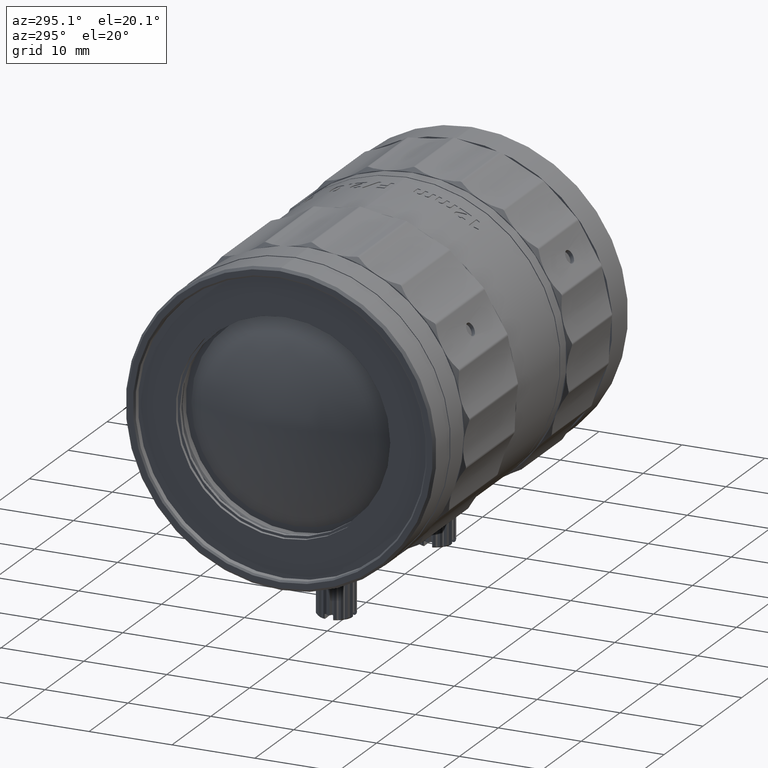
[diagram: clean part render]
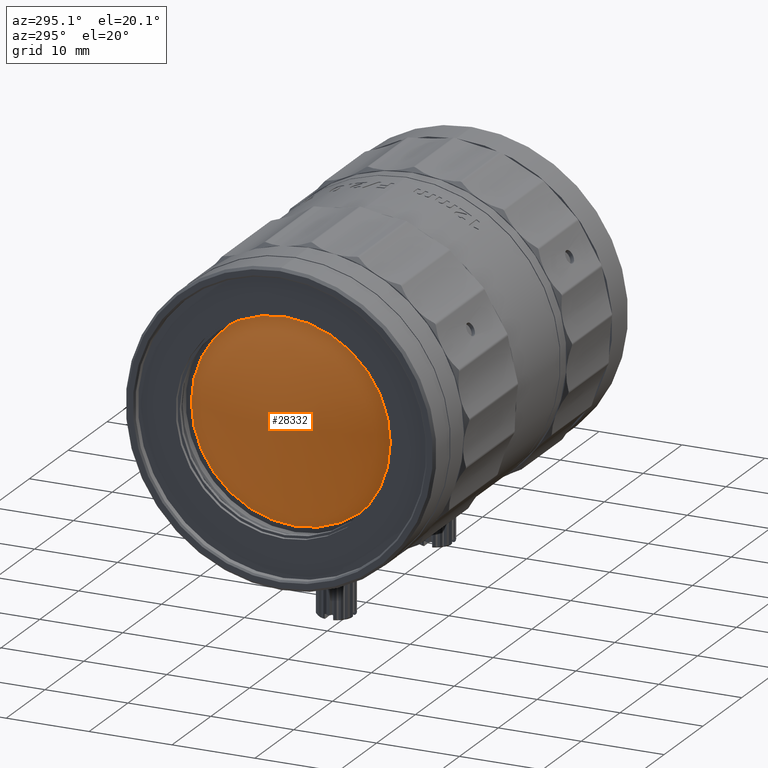
[diagram: same view with one face highlighted and labeled with its STEP entity id]
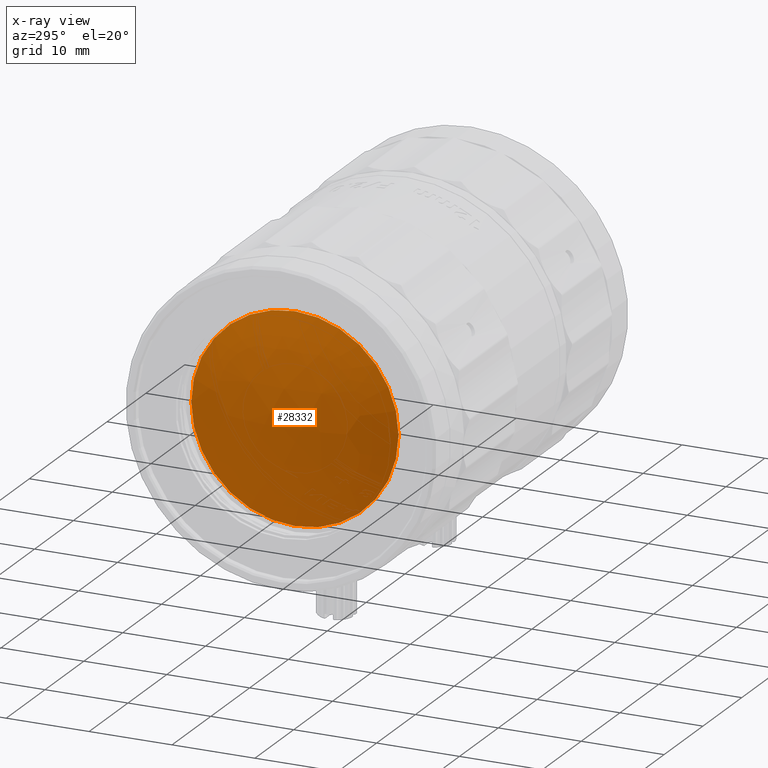
[diagram: x-ray of the same camera — body ghosted, the highlighted face saturated]
A machine part, auxiliary view. The second image highlights one B-rep face of the part: STEP entity #28332.
The next image is the same camera in x-ray: the body ghosted, the highlighted face saturated — about 0% of this face is hidden behind the body in this view.
In plain terms, the highlighted face is a freeform B-spline surface patch.
Its self-contained STEP definition (entity closure, byte-faithful):
#866 = CARTESIAN_POINT ( 'NONE',  ( -33.90108758939501854, -4.844815073708812925, -4.650042621029265355 ) ) ;
#1111 = CIRCLE ( 'NONE', #19311, 12.50000314733999929 ) ;
#2463 = VERTEX_POINT ( 'NONE', #18857 ) ;
#2582 = VERTEX_POINT ( 'NONE', #3676 ) ;
#3676 = CARTESIAN_POINT ( 'NONE',  ( -28.32865824285000045, 1.530808884372177085E-15, -12.50000314733999929 ) ) ;
#3697 = CARTESIAN_POINT ( 'NONE',  ( -25.39981056583294361, 11.11172157354021195, 12.63775557134128213 ) ) ;
#3891 = CARTESIAN_POINT ( 'NONE',  ( -25.34355346731626213, -11.12833864386176330, -12.71272947576010637 ) ) ;
#4084 = CARTESIAN_POINT ( 'NONE',  ( -33.90981131494524448, 4.792838913988153315, -4.650042621029265355 ) ) ;
#6563 = CARTESIAN_POINT ( 'NONE',  ( -29.24775058699276187, -4.059463411745291239, -12.71272947576010459 ) ) ;
#6749 = CARTESIAN_POINT ( 'NONE',  ( -29.25469614161698217, -13.28849446246670141, 4.560619837151453915 ) ) ;
#7047 = CARTESIAN_POINT ( 'NONE',  ( -28.32865824285000045, 0.000000000000000000, 0.000000000000000000 ) ) ;
#7675 = ORIENTED_EDGE ( 'NONE', *, *, #28550, .T. ) ;
#7838 = CARTESIAN_POINT ( 'NONE',  ( -28.32865824285000045, 0.000000000000000000, 0.000000000000000000 ) ) ;
#8043 = CIRCLE ( 'NONE', #29258, 12.50000314733999929 ) ;
#12271 = CARTESIAN_POINT ( 'NONE',  ( -33.91674889410187177, -4.847458258948500465, 4.560619837151453915 ) ) ;
#13040 = CARTESIAN_POINT ( 'NONE',  ( -33.92547737905410798, 4.795453742599958602, 4.560619837151453915 ) ) ;
#15500 = CARTESIAN_POINT ( 'NONE',  ( -25.36366653398135185, 11.09184423943545994, -12.71272947576010637 ) ) ;
#15871 = CARTESIAN_POINT ( 'NONE',  ( -29.25506018377746642, 4.015912664098785889, -12.71272947576010459 ) ) ;
#16843 = ORIENTED_EDGE ( 'NONE', *, *, #33242, .T. ) ;
#18348 = FACE_OUTER_BOUND ( 'NONE', #21680, .T. ) ;
#18857 = CARTESIAN_POINT ( 'NONE',  ( -28.32865824285000045, 0.000000000000000000, 12.50000314733999929 ) ) ;
#19311 = AXIS2_PLACEMENT_3D ( 'NONE', #7047, #33284, #32364 ) ;
#21680 = EDGE_LOOP ( 'NONE', ( #7675, #16843 ) ) ;
#21718 = DIRECTION ( 'NONE',  ( 0.000000000000000000, 0.000000000000000000, 1.000000000000000000 ) ) ;
#24607 = CARTESIAN_POINT ( 'NONE',  ( -29.29085515982799137, -4.066738244386232104, 12.63775557134128213 ) ) ;
#27788 = DIRECTION ( 'NONE',  ( -1.000000000000000000, 0.000000000000000000, 0.000000000000000000 ) ) ;
#28332 = ADVANCED_FACE ( 'NONE', ( #18348 ), #29072, .T. ) ;
#28550 = EDGE_CURVE ( 'NONE', #2463, #2582, #1111, .T. ) ;
#29072 =( BOUNDED_SURFACE ( )  B_SPLINE_SURFACE ( 3, 3, ( 
 ( #3891, #6563, #15871, #15500 ),
 ( #35660, #866, #4084, #35847 ),
 ( #6749, #12271, #13040, #29553 ),
 ( #29737, #24607, #36227, #3697 ) ),
 .UNSPECIFIED., .F., .F., .T. ) 
 B_SPLINE_SURFACE_WITH_KNOTS ( ( 4, 4 ),
 ( 4, 4 ),
 ( 0.000000000000000000, 1.000000000000000000 ),
 ( 0.000000000000000000, 1.000000000000000000 ),
 .UNSPECIFIED. ) 
 GEOMETRIC_REPRESENTATION_ITEM ( )  RATIONAL_B_SPLINE_SURFACE ( (
 ( 1.000000000000000000, 0.9171990949030263129, 0.9171990949030263129, 1.000000000000000000),
 ( 0.9174325647838577069, 0.8414683180543163221, 0.8414683180543163221, 0.9174325647838577069),
 ( 0.9174325647838577069, 0.8414683180543163221, 0.8414683180543163221, 0.9174325647838577069),
 ( 1.000000000000000000, 0.9171990949030263129, 0.9171990949030263129, 1.000000000000000000) ) ) 
 REPRESENTATION_ITEM ( '' )  SURFACE ( )  );
#29258 = AXIS2_PLACEMENT_3D ( 'NONE', #7838, #27788, #21718 ) ;
#29553 = CARTESIAN_POINT ( 'NONE',  ( -29.27871341711117381, 13.24491601768263394, 4.560619837151453915 ) ) ;
#29737 = CARTESIAN_POINT ( 'NONE',  ( -25.37966145519380490, -11.14828137840435751, 12.63775557134128213 ) ) ;
#32364 = DIRECTION ( 'NONE',  ( 0.000000000000000000, 0.000000000000000000, 1.000000000000000000 ) ) ;
#33242 = EDGE_CURVE ( 'NONE', #2582, #2463, #8043, .T. ) ;
#33284 = DIRECTION ( 'NONE',  ( -1.000000000000000000, 0.000000000000000000, 0.000000000000000000 ) ) ;
#35660 = CARTESIAN_POINT ( 'NONE',  ( -29.24157692564276800, -13.28124861308655902, -4.650042621029265355 ) ) ;
#35847 = CARTESIAN_POINT ( 'NONE',  ( -29.26558110517930444, 13.23769393042603681, -4.650042621029265355 ) ) ;
#36227 = CARTESIAN_POINT ( 'NONE',  ( -29.29817785590387302, 4.023109450858196823, 12.63775557134128213 ) ) ;